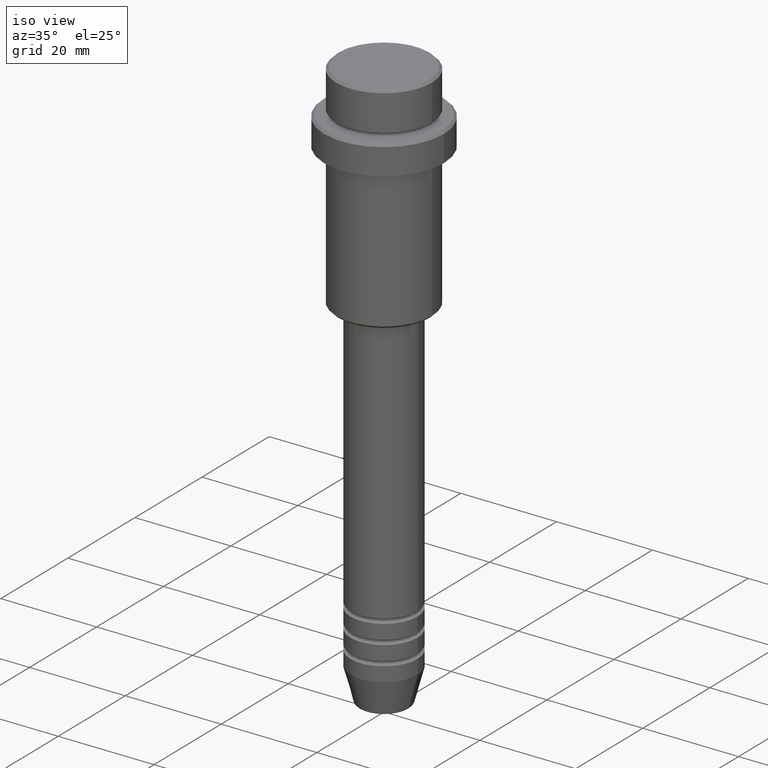
[diagram: clean part render]
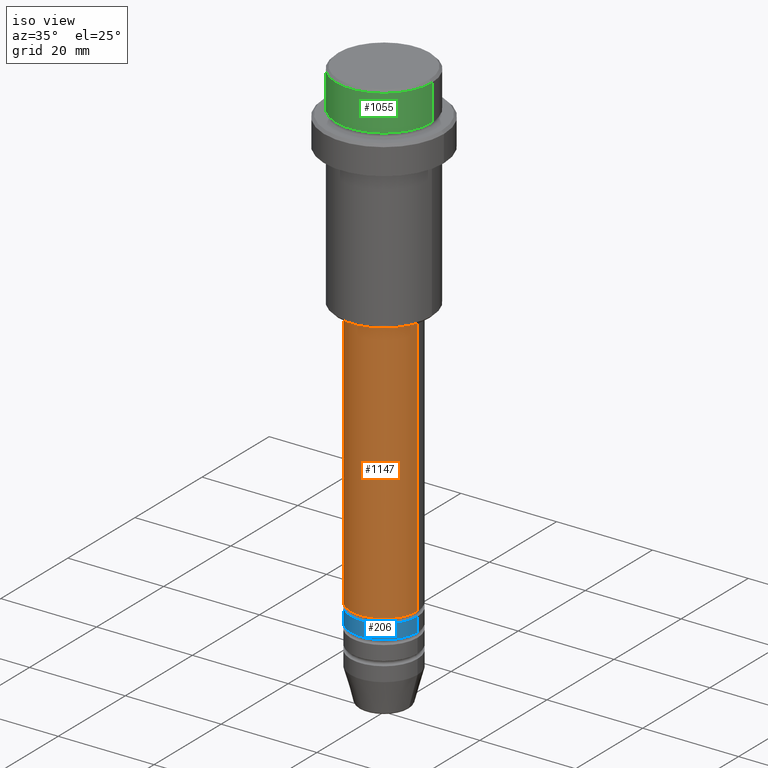
[diagram: same view with three faces highlighted in distinct colors, each labeled with its STEP entity id]
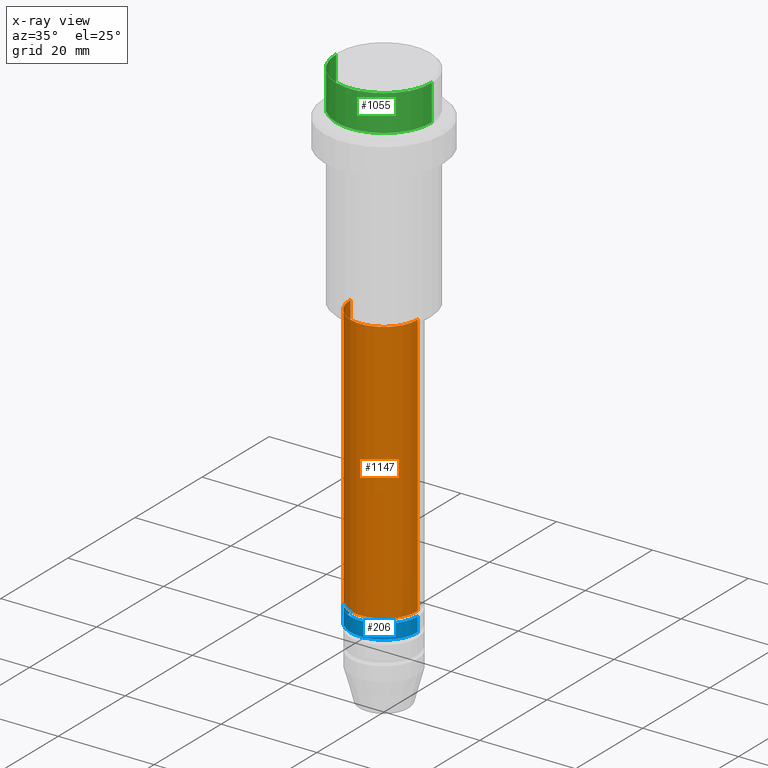
[diagram: x-ray of the same camera — body ghosted, the three highlighted faces saturated]
A machine part, iso view with three faces highlighted in distinct colors.
The next image is the same camera in x-ray (body ghosted, the three faces saturated) — at least one of them is partly hidden behind the body in this view.
Their STEP definitions:

[orange] entity #1147 — the highlighted cylindrical surface (partial cylindrical patch) has radius 7 mm, axis along (-0, -0, 1).
#12 = ORIENTED_EDGE ( 'NONE', *, *, #179, .F. ) ;
#89 = VERTEX_POINT ( 'NONE', #594 ) ;
#118 = CARTESIAN_POINT ( 'NONE',  ( 0.000000000000000000, 0.000000000000000000, -45.99999999999997868 ) ) ;
#166 = VECTOR ( 'NONE', #277, 1000.000000000000000 ) ;
#178 = DIRECTION ( 'NONE',  ( -0.000000000000000000, -0.000000000000000000, 1.000000000000000000 ) ) ;
#179 = EDGE_CURVE ( 'NONE', #655, #840, #1248, .T. ) ;
#241 = ORIENTED_EDGE ( 'NONE', *, *, #795, .T. ) ;
#260 = CARTESIAN_POINT ( 'NONE',  ( -7.000000000000000000, 8.572527594031473190E-16, -100.9999999999998721 ) ) ;
#277 = DIRECTION ( 'NONE',  ( -0.000000000000000000, -0.000000000000000000, 1.000000000000000000 ) ) ;
#303 = CIRCLE ( 'NONE', #756, 7.000000000000000000 ) ;
#335 = LINE ( 'NONE', #344, #976 ) ;
#344 = CARTESIAN_POINT ( 'NONE',  ( 7.000000000000000000, 0.000000000000000000, 0.000000000000000000 ) ) ;
#417 = CARTESIAN_POINT ( 'NONE',  ( 0.000000000000000000, 0.000000000000000000, -100.9999999999998721 ) ) ;
#440 = DIRECTION ( 'NONE',  ( -0.000000000000000000, -0.000000000000000000, 1.000000000000000000 ) ) ;
#518 = AXIS2_PLACEMENT_3D ( 'NONE', #536, #565, #773 ) ;
#525 = ORIENTED_EDGE ( 'NONE', *, *, #1060, .T. ) ;
#536 = CARTESIAN_POINT ( 'NONE',  ( 0.000000000000000000, 0.000000000000000000, 0.000000000000000000 ) ) ;
#557 = FACE_OUTER_BOUND ( 'NONE', #990, .T. ) ;
#565 = DIRECTION ( 'NONE',  ( -0.000000000000000000, -0.000000000000000000, 1.000000000000000000 ) ) ;
#591 = VERTEX_POINT ( 'NONE', #814 ) ;
#594 = CARTESIAN_POINT ( 'NONE',  ( 7.000000000000000000, 0.000000000000000000, -100.9999999999998721 ) ) ;
#619 = DIRECTION ( 'NONE',  ( 1.000000000000000000, 0.000000000000000000, 0.000000000000000000 ) ) ;
#655 = VERTEX_POINT ( 'NONE', #260 ) ;
#669 = CYLINDRICAL_SURFACE ( 'NONE', #518, 7.000000000000000000 ) ;
#756 = AXIS2_PLACEMENT_3D ( 'NONE', #118, #440, #1079 ) ;
#773 = DIRECTION ( 'NONE',  ( 1.000000000000000000, 0.000000000000000000, 0.000000000000000000 ) ) ;
#795 = EDGE_CURVE ( 'NONE', #655, #89, #1207, .T. ) ;
#807 = CARTESIAN_POINT ( 'NONE',  ( -7.000000000000000000, 8.572527594031473190E-16, 0.000000000000000000 ) ) ;
#814 = CARTESIAN_POINT ( 'NONE',  ( 7.000000000000000000, 0.000000000000000000, -45.99999999999997868 ) ) ;
#840 = VERTEX_POINT ( 'NONE', #1252 ) ;
#854 = ORIENTED_EDGE ( 'NONE', *, *, #1128, .F. ) ;
#971 = DIRECTION ( 'NONE',  ( -0.000000000000000000, -0.000000000000000000, 1.000000000000000000 ) ) ;
#976 = VECTOR ( 'NONE', #971, 1000.000000000000000 ) ;
#990 = EDGE_LOOP ( 'NONE', ( #12, #241, #525, #854 ) ) ;
#1060 = EDGE_CURVE ( 'NONE', #89, #591, #335, .T. ) ;
#1079 = DIRECTION ( 'NONE',  ( 1.000000000000000000, 0.000000000000000000, 0.000000000000000000 ) ) ;
#1128 = EDGE_CURVE ( 'NONE', #840, #591, #303, .T. ) ;
#1147 = ADVANCED_FACE ( 'NONE', ( #557 ), #669, .T. ) ;
#1207 = CIRCLE ( 'NONE', #1234, 7.000000000000000000 ) ;
#1234 = AXIS2_PLACEMENT_3D ( 'NONE', #417, #178, #619 ) ;
#1248 = LINE ( 'NONE', #807, #166 ) ;
#1252 = CARTESIAN_POINT ( 'NONE',  ( -7.000000000000000000, 8.572527594031473190E-16, -45.99999999999997868 ) ) ;

[blue] entity #206 — the highlighted cylindrical surface (partial cylindrical patch) has radius 7 mm, axis along (-0, -0, 1).
#6 = AXIS2_PLACEMENT_3D ( 'NONE', #1220, #1203, #1212 ) ;
#75 = CARTESIAN_POINT ( 'NONE',  ( 7.000000000000000000, 0.000000000000000000, -101.9999999999998721 ) ) ;
#88 = EDGE_CURVE ( 'NONE', #628, #767, #890, .T. ) ;
#148 = ORIENTED_EDGE ( 'NONE', *, *, #88, .F. ) ;
#151 = DIRECTION ( 'NONE',  ( -0.000000000000000000, -0.000000000000000000, 1.000000000000000000 ) ) ;
#206 = ADVANCED_FACE ( 'NONE', ( #477 ), #444, .T. ) ;
#246 = CARTESIAN_POINT ( 'NONE',  ( 7.000000000000000000, 0.000000000000000000, -104.9999999999998721 ) ) ;
#281 = CARTESIAN_POINT ( 'NONE',  ( 7.000000000000000000, 0.000000000000000000, 0.000000000000000000 ) ) ;
#291 = DIRECTION ( 'NONE',  ( -0.000000000000000000, -0.000000000000000000, 1.000000000000000000 ) ) ;
#330 = ORIENTED_EDGE ( 'NONE', *, *, #845, .T. ) ;
#441 = ORIENTED_EDGE ( 'NONE', *, *, #1026, .T. ) ;
#444 = CYLINDRICAL_SURFACE ( 'NONE', #6, 7.000000000000000000 ) ;
#448 = CARTESIAN_POINT ( 'NONE',  ( 0.000000000000000000, 0.000000000000000000, -104.9999999999998721 ) ) ;
#477 = FACE_OUTER_BOUND ( 'NONE', #858, .T. ) ;
#484 = VECTOR ( 'NONE', #291, 1000.000000000000000 ) ;
#588 = CARTESIAN_POINT ( 'NONE',  ( -7.000000000000000000, 8.572527594031473190E-16, -101.9999999999998721 ) ) ;
#623 = CIRCLE ( 'NONE', #1047, 7.000000000000000000 ) ;
#628 = VERTEX_POINT ( 'NONE', #588 ) ;
#633 = VERTEX_POINT ( 'NONE', #246 ) ;
#700 = DIRECTION ( 'NONE',  ( 1.000000000000000000, 0.000000000000000000, 0.000000000000000000 ) ) ;
#739 = CARTESIAN_POINT ( 'NONE',  ( -7.000000000000000000, 8.572527594031473190E-16, 0.000000000000000000 ) ) ;
#767 = VERTEX_POINT ( 'NONE', #75 ) ;
#823 = LINE ( 'NONE', #281, #842 ) ;
#826 = LINE ( 'NONE', #739, #484 ) ;
#842 = VECTOR ( 'NONE', #1272, 1000.000000000000000 ) ;
#845 = EDGE_CURVE ( 'NONE', #633, #767, #823, .T. ) ;
#850 = DIRECTION ( 'NONE',  ( -0.000000000000000000, -0.000000000000000000, 1.000000000000000000 ) ) ;
#858 = EDGE_LOOP ( 'NONE', ( #962, #441, #330, #148 ) ) ;
#862 = DIRECTION ( 'NONE',  ( 1.000000000000000000, 0.000000000000000000, 0.000000000000000000 ) ) ;
#868 = CARTESIAN_POINT ( 'NONE',  ( -7.000000000000000000, 8.572527594031473190E-16, -104.9999999999998721 ) ) ;
#890 = CIRCLE ( 'NONE', #1238, 7.000000000000000000 ) ;
#962 = ORIENTED_EDGE ( 'NONE', *, *, #1211, .F. ) ;
#1026 = EDGE_CURVE ( 'NONE', #1053, #633, #623, .T. ) ;
#1047 = AXIS2_PLACEMENT_3D ( 'NONE', #448, #850, #862 ) ;
#1053 = VERTEX_POINT ( 'NONE', #868 ) ;
#1203 = DIRECTION ( 'NONE',  ( -0.000000000000000000, -0.000000000000000000, 1.000000000000000000 ) ) ;
#1211 = EDGE_CURVE ( 'NONE', #1053, #628, #826, .T. ) ;
#1212 = DIRECTION ( 'NONE',  ( 1.000000000000000000, 0.000000000000000000, 0.000000000000000000 ) ) ;
#1220 = CARTESIAN_POINT ( 'NONE',  ( 0.000000000000000000, 0.000000000000000000, 0.000000000000000000 ) ) ;
#1238 = AXIS2_PLACEMENT_3D ( 'NONE', #1378, #151, #700 ) ;
#1272 = DIRECTION ( 'NONE',  ( -0.000000000000000000, -0.000000000000000000, 1.000000000000000000 ) ) ;
#1378 = CARTESIAN_POINT ( 'NONE',  ( 0.000000000000000000, 0.000000000000000000, -101.9999999999998721 ) ) ;

[green] entity #1055 — the highlighted cylindrical surface (partial cylindrical patch) has radius 10 mm, axis along (-0, -0, 1).
#11 = CARTESIAN_POINT ( 'NONE',  ( 0.000000000000000000, 0.000000000000000000, 0.000000000000000000 ) ) ;
#134 = LINE ( 'NONE', #894, #838 ) ;
#184 = AXIS2_PLACEMENT_3D ( 'NONE', #11, #1186, #238 ) ;
#196 = AXIS2_PLACEMENT_3D ( 'NONE', #1170, #1151, #943 ) ;
#213 = DIRECTION ( 'NONE',  ( -0.000000000000000000, -0.000000000000000000, 1.000000000000000000 ) ) ;
#222 = VERTEX_POINT ( 'NONE', #242 ) ;
#226 = LINE ( 'NONE', #875, #1000 ) ;
#238 = DIRECTION ( 'NONE',  ( 1.000000000000000000, 0.000000000000000000, 0.000000000000000000 ) ) ;
#242 = CARTESIAN_POINT ( 'NONE',  ( -9.999999999999998224, 1.224646799147353059E-15, -7.999999999999998224 ) ) ;
#319 = ORIENTED_EDGE ( 'NONE', *, *, #1085, .T. ) ;
#376 = DIRECTION ( 'NONE',  ( -0.000000000000000000, -0.000000000000000000, 1.000000000000000000 ) ) ;
#394 = CIRCLE ( 'NONE', #487, 9.999999999999998224 ) ;
#398 = CARTESIAN_POINT ( 'NONE',  ( 9.999999999999998224, 0.000000000000000000, -0.4999999999999970024 ) ) ;
#411 = VERTEX_POINT ( 'NONE', #902 ) ;
#451 = ORIENTED_EDGE ( 'NONE', *, *, #636, .F. ) ;
#487 = AXIS2_PLACEMENT_3D ( 'NONE', #651, #1300, #849 ) ;
#636 = EDGE_CURVE ( 'NONE', #222, #731, #134, .T. ) ;
#651 = CARTESIAN_POINT ( 'NONE',  ( 0.000000000000000000, 0.000000000000000000, -7.999999999999998224 ) ) ;
#690 = CIRCLE ( 'NONE', #196, 9.999999999999998224 ) ;
#731 = VERTEX_POINT ( 'NONE', #792 ) ;
#760 = ORIENTED_EDGE ( 'NONE', *, *, #1409, .T. ) ;
#792 = CARTESIAN_POINT ( 'NONE',  ( -9.999999999999998224, 1.224646799147353059E-15, -0.4999999999999970024 ) ) ;
#838 = VECTOR ( 'NONE', #376, 1000.000000000000000 ) ;
#843 = VERTEX_POINT ( 'NONE', #398 ) ;
#849 = DIRECTION ( 'NONE',  ( 1.000000000000000000, 0.000000000000000000, 0.000000000000000000 ) ) ;
#875 = CARTESIAN_POINT ( 'NONE',  ( 9.999999999999998224, 0.000000000000000000, 0.000000000000000000 ) ) ;
#894 = CARTESIAN_POINT ( 'NONE',  ( -9.999999999999998224, 1.224646799147353059E-15, 0.000000000000000000 ) ) ;
#902 = CARTESIAN_POINT ( 'NONE',  ( 9.999999999999998224, 0.000000000000000000, -7.999999999999998224 ) ) ;
#943 = DIRECTION ( 'NONE',  ( 1.000000000000000000, 0.000000000000000000, 0.000000000000000000 ) ) ;
#1000 = VECTOR ( 'NONE', #213, 1000.000000000000000 ) ;
#1051 = ORIENTED_EDGE ( 'NONE', *, *, #1166, .T. ) ;
#1055 = ADVANCED_FACE ( 'NONE', ( #1295 ), #1309, .T. ) ;
#1085 = EDGE_CURVE ( 'NONE', #411, #843, #226, .T. ) ;
#1151 = DIRECTION ( 'NONE',  ( 0.000000000000000000, 0.000000000000000000, -1.000000000000000000 ) ) ;
#1166 = EDGE_CURVE ( 'NONE', #843, #731, #690, .T. ) ;
#1170 = CARTESIAN_POINT ( 'NONE',  ( 0.000000000000000000, 0.000000000000000000, -0.4999999999999970024 ) ) ;
#1186 = DIRECTION ( 'NONE',  ( -0.000000000000000000, -0.000000000000000000, 1.000000000000000000 ) ) ;
#1230 = EDGE_LOOP ( 'NONE', ( #451, #760, #319, #1051 ) ) ;
#1295 = FACE_OUTER_BOUND ( 'NONE', #1230, .T. ) ;
#1300 = DIRECTION ( 'NONE',  ( -0.000000000000000000, -0.000000000000000000, 1.000000000000000000 ) ) ;
#1309 = CYLINDRICAL_SURFACE ( 'NONE', #184, 9.999999999999998224 ) ;
#1409 = EDGE_CURVE ( 'NONE', #222, #411, #394, .T. ) ;